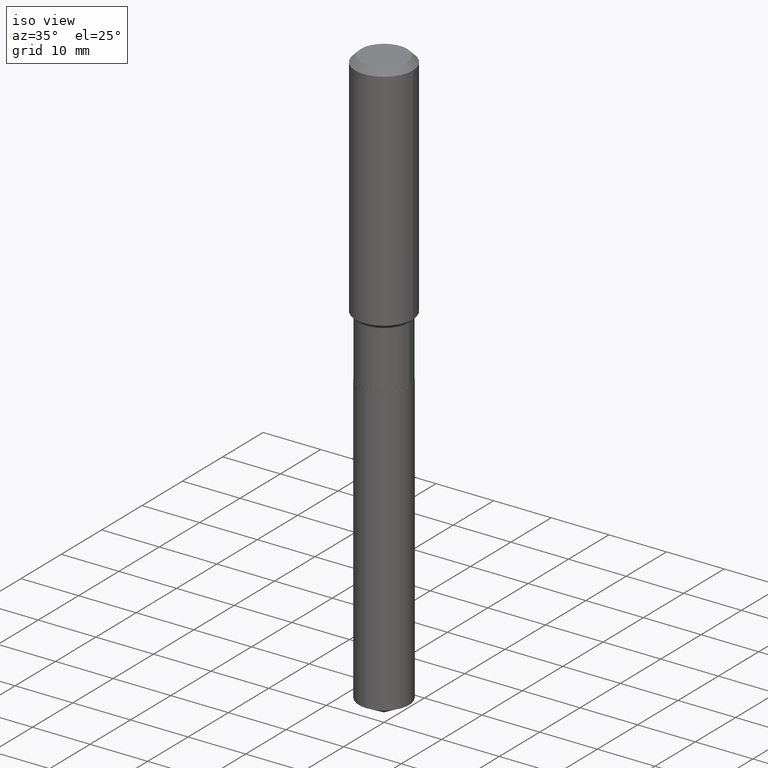
[diagram: clean part render]
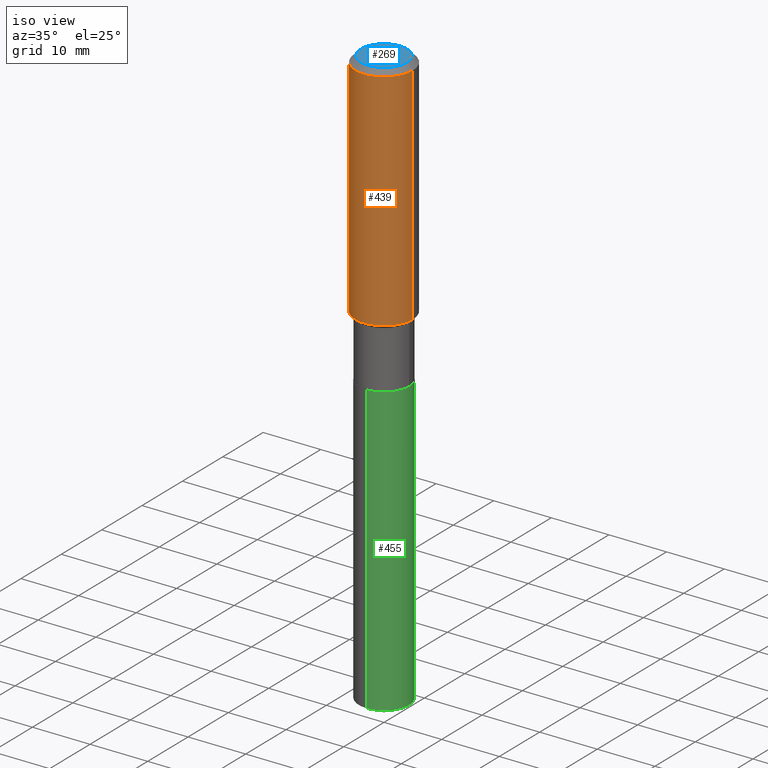
[diagram: same view with three faces highlighted in distinct colors, each labeled with its STEP entity id]
A machine part, iso view with three faces highlighted in distinct colors.
Their STEP definitions:

[orange] entity #439 — the highlighted cylindrical surface (edge-blend (fillet) strip) has radius 5 mm, axis along (-0, 0, 1).
#8 = AXIS2_PLACEMENT_3D ( 'NONE', #234, #80, #78 ) ;
#15 = CARTESIAN_POINT ( 'NONE',  ( -0.1968500000000001082, 1.398703375343757985E-15, -9.682923725166787881E-30 ) ) ;
#17 = ORIENTED_EDGE ( 'NONE', *, *, #395, .F. ) ;
#28 = VECTOR ( 'NONE', #43, 39.37007874015748143 ) ;
#34 = DIRECTION ( 'NONE',  ( -2.445468806185136877E-29, 3.491481338843145188E-15, 1.000000000000000000 ) ) ;
#37 = CARTESIAN_POINT ( 'NONE',  ( -0.1968500000000002192, -4.105442381275518145E-15, -1.576449999999999685 ) ) ;
#43 = DIRECTION ( 'NONE',  ( -2.445468806185136877E-29, 3.491481338843145188E-15, 1.000000000000000000 ) ) ;
#53 = AXIS2_PLACEMENT_3D ( 'NONE', #116, #365, #176 ) ;
#59 = LINE ( 'NONE', #15, #28 ) ;
#78 = DIRECTION ( 'NONE',  ( 1.000000000000000000, -6.982962677686265922E-15, 0.000000000000000000 ) ) ;
#80 = DIRECTION ( 'NONE',  ( -2.445468806185136597E-29, 3.491481338843145583E-15, 1.000000000000000000 ) ) ;
#90 = CARTESIAN_POINT ( 'NONE',  ( 0.000000000000000000, 0.000000000000000000, 0.000000000000000000 ) ) ;
#97 = FACE_OUTER_BOUND ( 'NONE', #433, .T. ) ;
#107 = ORIENTED_EDGE ( 'NONE', *, *, #290, .F. ) ;
#115 = CIRCLE ( 'NONE', #53, 0.1968500000000000250 ) ;
#116 = CARTESIAN_POINT ( 'NONE',  ( 9.627810689950950651E-31, -1.374596203102555808E-16, -0.03937000000000027283 ) ) ;
#140 = CARTESIAN_POINT ( 'NONE',  ( 0.1968500000000000250, -1.512055823412797189E-15, -0.03937000000000027283 ) ) ;
#174 = AXIS2_PLACEMENT_3D ( 'NONE', #90, #321, #462 ) ;
#176 = DIRECTION ( 'NONE',  ( 1.000000000000000000, -6.982962677686265922E-15, 0.000000000000000000 ) ) ;
#191 = CIRCLE ( 'NONE', #8, 0.1968500000000002192 ) ;
#199 = ORIENTED_EDGE ( 'NONE', *, *, #305, .T. ) ;
#202 = VERTEX_POINT ( 'NONE', #140 ) ;
#203 = VERTEX_POINT ( 'NONE', #337 ) ;
#234 = CARTESIAN_POINT ( 'NONE',  ( 3.855159299510557695E-29, -5.504145756619275933E-15, -1.576449999999999685 ) ) ;
#277 = ORIENTED_EDGE ( 'NONE', *, *, #325, .T. ) ;
#290 = EDGE_CURVE ( 'NONE', #427, #203, #59, .T. ) ;
#305 = EDGE_CURVE ( 'NONE', #389, #202, #447, .T. ) ;
#321 = DIRECTION ( 'NONE',  ( -2.445468806185136597E-29, 3.491481338843145583E-15, 1.000000000000000000 ) ) ;
#325 = EDGE_CURVE ( 'NONE', #427, #389, #191, .T. ) ;
#337 = CARTESIAN_POINT ( 'NONE',  ( -0.1968500000000000250, -1.422099313121007378E-15, -0.03937000000000027283 ) ) ;
#350 = CARTESIAN_POINT ( 'NONE',  ( 0.1968500000000002192, -6.878741959721819908E-15, -1.576449999999999685 ) ) ;
#365 = DIRECTION ( 'NONE',  ( -2.445468806185136597E-29, 3.491481338843145583E-15, 1.000000000000000000 ) ) ;
#388 = CYLINDRICAL_SURFACE ( 'NONE', #174, 0.1968500000000001082 ) ;
#389 = VERTEX_POINT ( 'NONE', #350 ) ;
#395 = EDGE_CURVE ( 'NONE', #203, #202, #115, .T. ) ;
#427 = VERTEX_POINT ( 'NONE', #37 ) ;
#433 = EDGE_LOOP ( 'NONE', ( #107, #277, #199, #17 ) ) ;
#439 = ADVANCED_FACE ( 'NONE', ( #97 ), #388, .T. ) ;
#447 = LINE ( 'NONE', #454, #477 ) ;
#454 = CARTESIAN_POINT ( 'NONE',  ( 0.1968500000000001082, -1.374596203102542397E-15, 9.598753983154305062E-30 ) ) ;
#462 = DIRECTION ( 'NONE',  ( 1.000000000000000000, -6.982962677686266711E-15, 4.876176775795935793E-29 ) ) ;
#477 = VECTOR ( 'NONE', #34, 39.37007874015748143 ) ;

[blue] entity #269 — the highlighted planar face has unit normal (0, -0, -1).
#33 = CARTESIAN_POINT ( 'NONE',  ( -0.1574800000000000089, 1.168406772637159618E-15, 3.855188123707939751E-18 ) ) ;
#39 = AXIS2_PLACEMENT_3D ( 'NONE', #250, #56, #170 ) ;
#56 = DIRECTION ( 'NONE',  ( 2.438088387897960049E-29, -3.491481338843145188E-15, -1.000000000000000000 ) ) ;
#72 = VERTEX_POINT ( 'NONE', #120 ) ;
#95 = EDGE_CURVE ( 'NONE', #72, #378, #225, .T. ) ;
#99 = PLANE ( 'NONE',  #39 ) ;
#120 = CARTESIAN_POINT ( 'NONE',  ( 0.1574800000000000089, -1.284169937930321189E-15, 3.855188123724205385E-18 ) ) ;
#152 = DIRECTION ( 'NONE',  ( 1.000000000000000000, -6.982962677686265922E-15, 4.876223630392693006E-29 ) ) ;
#155 = CIRCLE ( 'NONE', #264, 0.1574800000000000089 ) ;
#170 = DIRECTION ( 'NONE',  ( -1.000000000000000000, 6.982962677686265922E-15, -4.876176775795935793E-29 ) ) ;
#189 = DIRECTION ( 'NONE',  ( -2.445468806185136597E-29, 3.491481338843145583E-15, 1.000000000000000000 ) ) ;
#193 = DIRECTION ( 'NONE',  ( 1.000000000000000000, -6.982962677686265922E-15, 4.876223630392693006E-29 ) ) ;
#213 = ORIENTED_EDGE ( 'NONE', *, *, #95, .T. ) ;
#225 = CIRCLE ( 'NONE', #486, 0.1574800000000000089 ) ;
#242 = ORIENTED_EDGE ( 'NONE', *, *, #352, .T. ) ;
#250 = CARTESIAN_POINT ( 'NONE',  ( -4.713871149261283817E-47, 6.730158695841841775E-33, 1.927594061857935365E-18 ) ) ;
#264 = AXIS2_PLACEMENT_3D ( 'NONE', #383, #189, #152 ) ;
#269 = ADVANCED_FACE ( 'NONE', ( #301 ), #99, .F. ) ;
#283 = DIRECTION ( 'NONE',  ( -2.445468806185136597E-29, 3.491481338843145583E-15, 1.000000000000000000 ) ) ;
#301 = FACE_OUTER_BOUND ( 'NONE', #488, .T. ) ;
#352 = EDGE_CURVE ( 'NONE', #378, #72, #155, .T. ) ;
#378 = VERTEX_POINT ( 'NONE', #33 ) ;
#383 = CARTESIAN_POINT ( 'NONE',  ( -9.427742298522567634E-47, 1.346031739168368355E-32, 3.855188123715870730E-18 ) ) ;
#461 = CARTESIAN_POINT ( 'NONE',  ( -9.427742298522567634E-47, 1.346031739168368355E-32, 3.855188123715870730E-18 ) ) ;
#486 = AXIS2_PLACEMENT_3D ( 'NONE', #461, #283, #193 ) ;
#488 = EDGE_LOOP ( 'NONE', ( #242, #213 ) ) ;

[green] entity #455 — the highlighted cylindrical surface (edge-blend (fillet) strip) has radius 4.3663 mm, axis along (-0, 0, 1).
#13 = ORIENTED_EDGE ( 'NONE', *, *, #302, .F. ) ;
#61 = DIRECTION ( 'NONE',  ( -6.982962677686266711E-15, -1.000000000000000000, 3.178415350394722068E-15 ) ) ;
#67 = DIRECTION ( 'NONE',  ( -2.445394639609318977E-29, 3.491587549601015898E-15, 1.000000000000000000 ) ) ;
#74 = VECTOR ( 'NONE', #450, 39.37007874015748143 ) ;
#76 = LINE ( 'NONE', #306, #74 ) ;
#98 = CARTESIAN_POINT ( 'NONE',  ( -1.200371284294220332E-15, -0.1719000000000069361, -1.996799999999999020 ) ) ;
#105 = CARTESIAN_POINT ( 'NONE',  ( 1.221422962771708638E-15, 0.1718999999999861472, -3.963599148697392938 ) ) ;
#130 = CARTESIAN_POINT ( 'NONE',  ( 4.883112112190479937E-29, -6.971789937401991965E-15, -1.996799999999999686 ) ) ;
#131 = EDGE_CURVE ( 'NONE', #347, #136, #412, .T. ) ;
#136 = VERTEX_POINT ( 'NONE', #215 ) ;
#156 = AXIS2_PLACEMENT_3D ( 'NONE', #130, #194, #243 ) ;
#158 = FACE_OUTER_BOUND ( 'NONE', #411, .T. ) ;
#162 = VERTEX_POINT ( 'NONE', #105 ) ;
#185 = CARTESIAN_POINT ( 'NONE',  ( 4.883112112190479937E-29, -6.971789937401991965E-15, -1.996799999999999686 ) ) ;
#194 = DIRECTION ( 'NONE',  ( -2.445394639609318977E-29, 3.491587549601015898E-15, 1.000000000000000000 ) ) ;
#195 = AXIS2_PLACEMENT_3D ( 'NONE', #185, #435, #61 ) ;
#200 = CARTESIAN_POINT ( 'NONE',  ( 9.692712207603256326E-29, -1.383904135755968393E-14, -3.963599148697392494 ) ) ;
#215 = CARTESIAN_POINT ( 'NONE',  ( 1.221422962771709230E-15, 0.1718999999999930028, -1.996800000000000130 ) ) ;
#243 = DIRECTION ( 'NONE',  ( -6.982962677686266711E-15, -1.000000000000000000, 3.178415350394722068E-15 ) ) ;
#265 = CARTESIAN_POINT ( 'NONE',  ( -1.200371284294220332E-15, -0.1719000000000069361, -1.996799999999999020 ) ) ;
#271 = DIRECTION ( 'NONE',  ( -2.445394639609318977E-29, 3.491587549601015898E-15, 1.000000000000000000 ) ) ;
#287 = VECTOR ( 'NONE', #67, 39.37007874015748143 ) ;
#302 = EDGE_CURVE ( 'NONE', #445, #347, #449, .T. ) ;
#306 = CARTESIAN_POINT ( 'NONE',  ( 1.221422962771660715E-15, 0.1718999999999930028, -1.996800000000000130 ) ) ;
#313 = DIRECTION ( 'NONE',  ( -6.982962677686266711E-15, -1.000000000000000000, 3.178415350394722068E-15 ) ) ;
#336 = ORIENTED_EDGE ( 'NONE', *, *, #359, .T. ) ;
#346 = CARTESIAN_POINT ( 'NONE',  ( -1.200371284294172211E-15, -0.1719000000000137640, -3.963599148697392049 ) ) ;
#347 = VERTEX_POINT ( 'NONE', #265 ) ;
#359 = EDGE_CURVE ( 'NONE', #162, #136, #76, .T. ) ;
#371 = ORIENTED_EDGE ( 'NONE', *, *, #131, .F. ) ;
#401 = ORIENTED_EDGE ( 'NONE', *, *, #430, .T. ) ;
#411 = EDGE_LOOP ( 'NONE', ( #401, #336, #371, #13 ) ) ;
#412 = CIRCLE ( 'NONE', #195, 0.1718999999999999695 ) ;
#430 = EDGE_CURVE ( 'NONE', #445, #162, #432, .T. ) ;
#432 = CIRCLE ( 'NONE', #446, 0.1718999999999999695 ) ;
#435 = DIRECTION ( 'NONE',  ( -2.445394639609318977E-29, 3.491587549601015898E-15, 1.000000000000000000 ) ) ;
#445 = VERTEX_POINT ( 'NONE', #346 ) ;
#446 = AXIS2_PLACEMENT_3D ( 'NONE', #200, #271, #313 ) ;
#449 = LINE ( 'NONE', #98, #287 ) ;
#450 = DIRECTION ( 'NONE',  ( -2.445394639609318977E-29, 3.491587549601015898E-15, 1.000000000000000000 ) ) ;
#455 = ADVANCED_FACE ( 'NONE', ( #158 ), #459, .T. ) ;
#459 = CYLINDRICAL_SURFACE ( 'NONE', #156, 0.1718999999999999695 ) ;